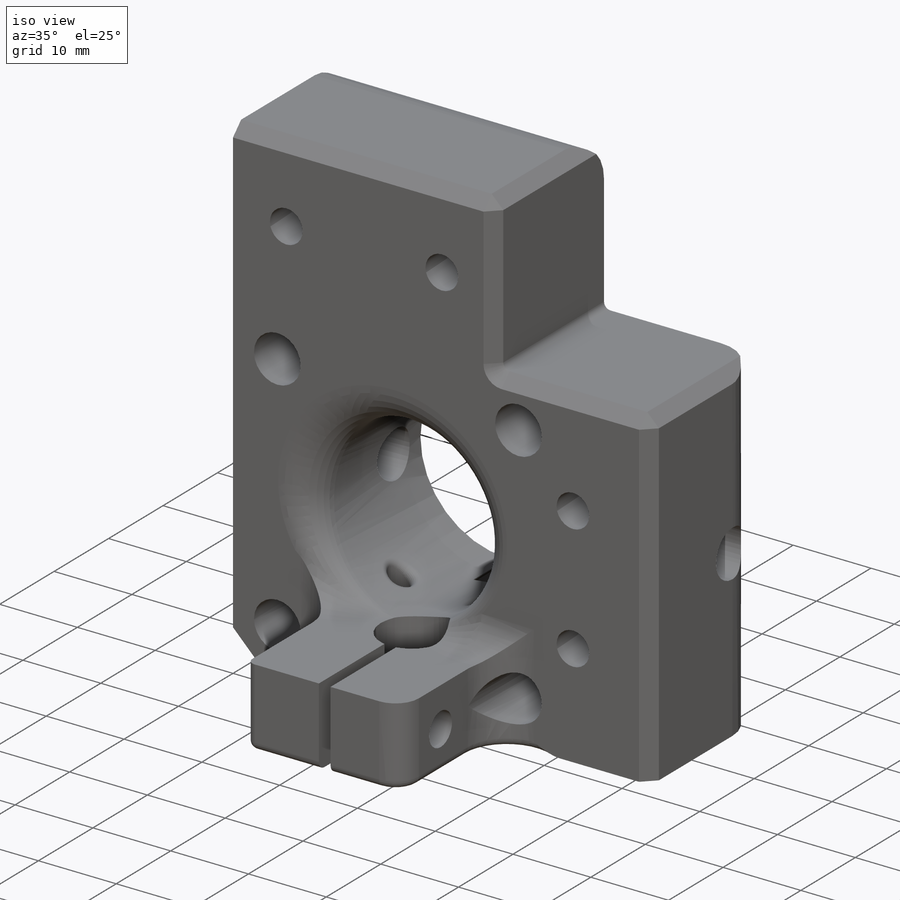
[diagram: iso view]
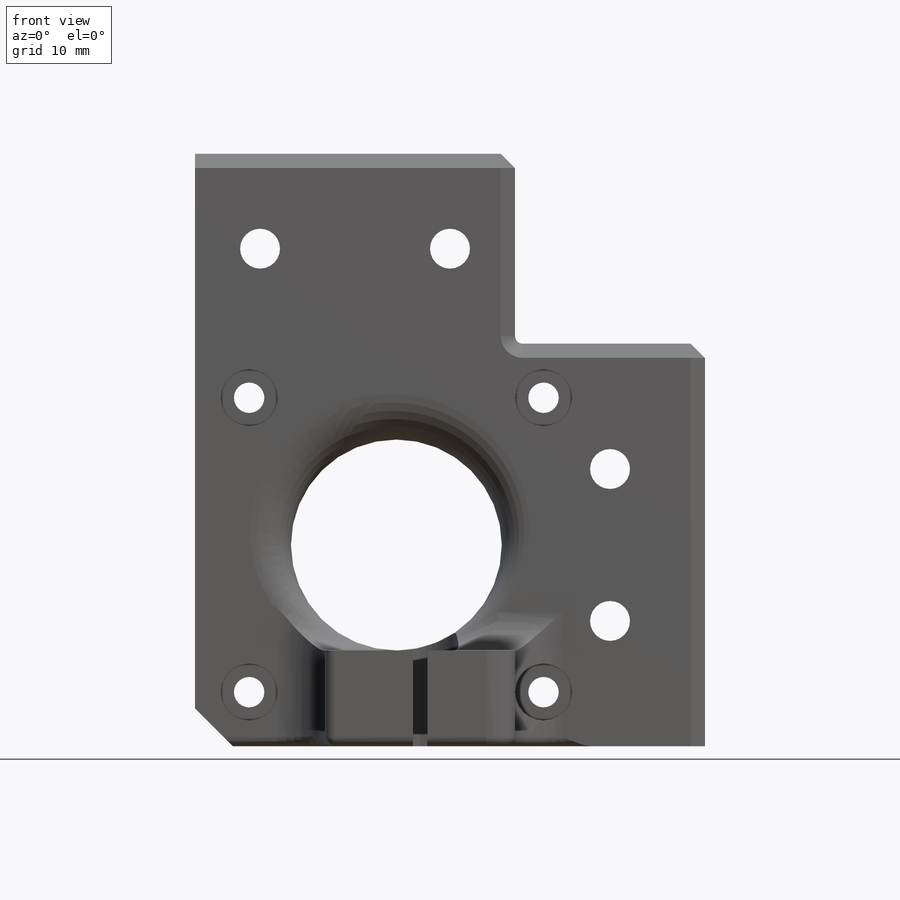
[diagram: front view]
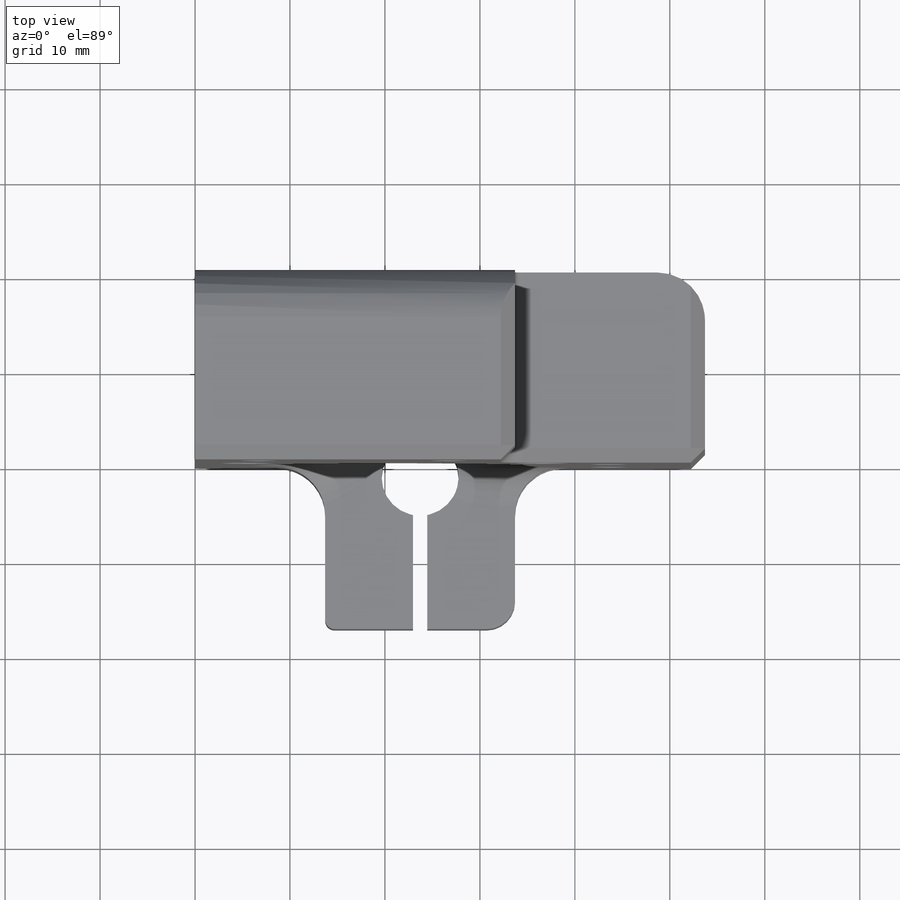
[diagram: top view]
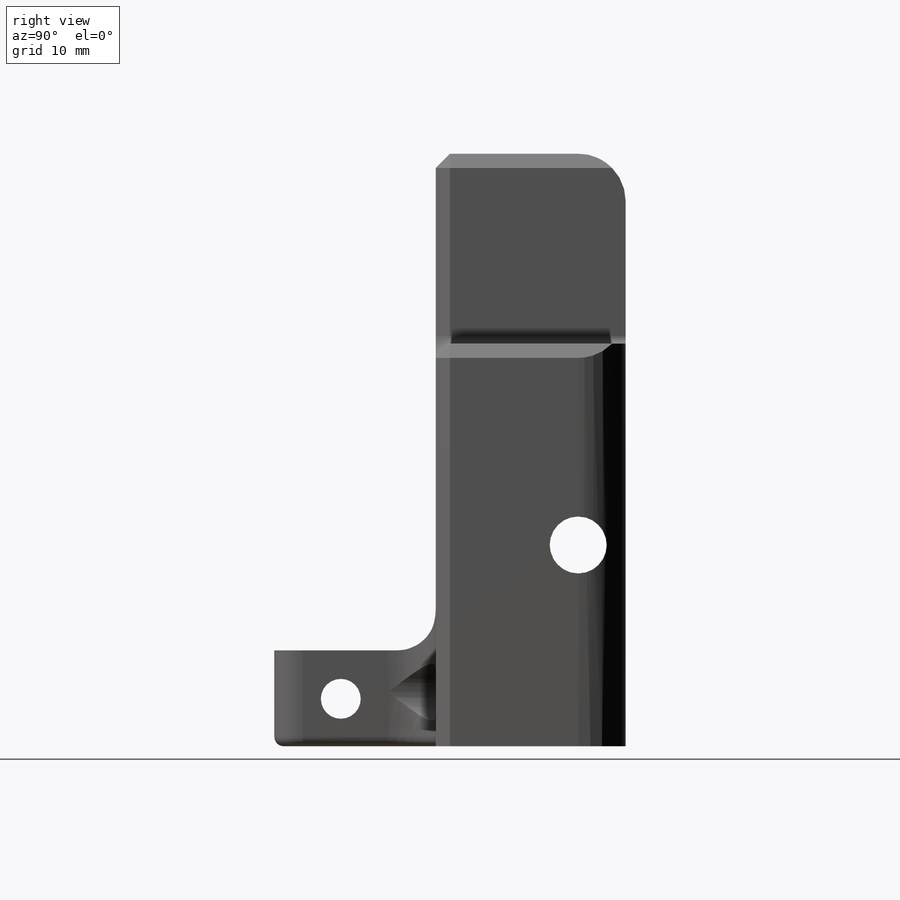
[diagram: right view]
SOLIDWORKS PART (.sldprt)
format: sldprt  version: not decoded by parser v0  size: 770,560 bytes
history: native  units: mm
features: sketch x13, cut_extrude x12, fillet x11, chamfer x2, material x1, extrude x1 (+11 scaffold rows collapsed)
feature tree (51):
  scaffold x11  (default folders/planes/origin — collapsed)
  material  "Material <not specified>"
  sketch  "Sketch1"  dims[c1.D8=22.2mm c1.D9=3.2mm c1.D15=4.2mm c1.D1=42.4mm c1.D2=21.2mm c1.D3=2.5mm c1.D4=12.5mm c1.D5=17.0mm c1.D6=31.0mm c1.D7=31.0mm c1.D10=17.0mm c1.D11=17.0mm c2.D5=21.2mm c2.D10=20.0mm c2.D11=20.0mm c2.D13=7.0mm c2.D14=8.0mm c2.D16=7.0mm c2.D17=20.0mm c2.D18=6.85mm c2.D19=6.9mm c3.D13=10.0mm c3.D16=10.0mm]
  extrude  "Boss-Extrude1"  Depth=37mm
  sketch  "Sketch2"
  cut_extrude  "Cut-Extrude1"  Depth=17mm
  sketch  "Sketch3"  dims[D1=9.0mm]
  cut_extrude  "Cut-Extrude2"  Depth=5mm
  sketch  "Sketch5"  dims[c1.D1=8.1mm c1.D5=2.5mm c1.D2=21.1mm c2.D2=90.0deg c3.D2=21.2mm c3.D3=2.5mm c3.D4=1.0mm c3.D6=11.0mm c3.D7=12.5mm c4.D3=10.0mm c4.D7=9.0mm c4.D8=1.5mm]
  cut_extrude  "Cut-Extrude4"  [1 undecoded]
  sketch  "Sketch6"  dims[D1=6.0mm]
  cut_extrude  "Cut-Extrude5"  Depth=12mm
  sketch  "Sketch7"  dims[D1=20.0mm]
  cut_extrude  "Cut-Extrude6"  [1 undecoded]
  sketch  "Sketch8"  dims[D1=4.2mm D2=7.0mm D3=5.0mm D4=5.1mm]
  cut_extrude  "Cut-Extrude7"  [1 undecoded]
  sketch  "Sketch9"  dims[D1=8.0mm]
  cut_extrude  "Cut-Extrude8"  Depth=4mm
  fillet  "Fillet1"  Radius=4mm
  fillet  "Fillet2"  Radius=1mm
  fillet  "Fillet3"  Radius=3mm
  fillet  "Fillet4"  Radius=1mm
  fillet  "Fillet6"  Radius=5mm
  sketch  "Sketch10"  dims[D1=10.0mm D2=13.0mm D3=20.25mm]
  cut_extrude  "Cut-Extrude9"  Depth=7.5mm
  sketch  "Sketch11"  dims[D3=1.05mm D1=3.0mm D2=6.0mm D4=6.5mm D5=2.2mm D6=10.0mm]
  cut_extrude  "Cut-Extrude10"  Depth=16.3mm
  sketch  "Sketch13"  dims[D1=4.1mm D2=1.7mm D3=1.3mm D4=1.2mm D5=6.5mm]
  cut_extrude  "Cut-Extrude11"  Depth=8mm
  chamfer  "Chamfer1"  Distance=1mm Angle=45deg
  sketch  "Sketch14"  dims[D1=6.0mm D2=5.0mm D3=21.2mm]
  cut_extrude  "Cut-Extrude12"  [1 undecoded]
  fillet  "Fillet7"  Radius=0.8mm
  fillet  "Fillet8"  Radius=5mm
  sketch  "Sketch15"  dims[D1=2.0mm]
  cut_extrude  "Cut-Extrude13"  Depth=10mm
  fillet  "Fillet10"  Radius=5mm
  fillet  "Fillet11"  Radius=5mm
  fillet  "Fillet12"  Radius=1mm
  fillet  "Fillet13"  Radius=1mm
  chamfer  "Chamfer2"  Distance=1.5mm Angle=45deg
decode coverage: 34 of 39 modeling features carry decoded parameters
note: 4 parameter values undecoded
summary: no parameter record found for 4 features
note: suppression state not decoded; provenance and decode notes live in map.json
